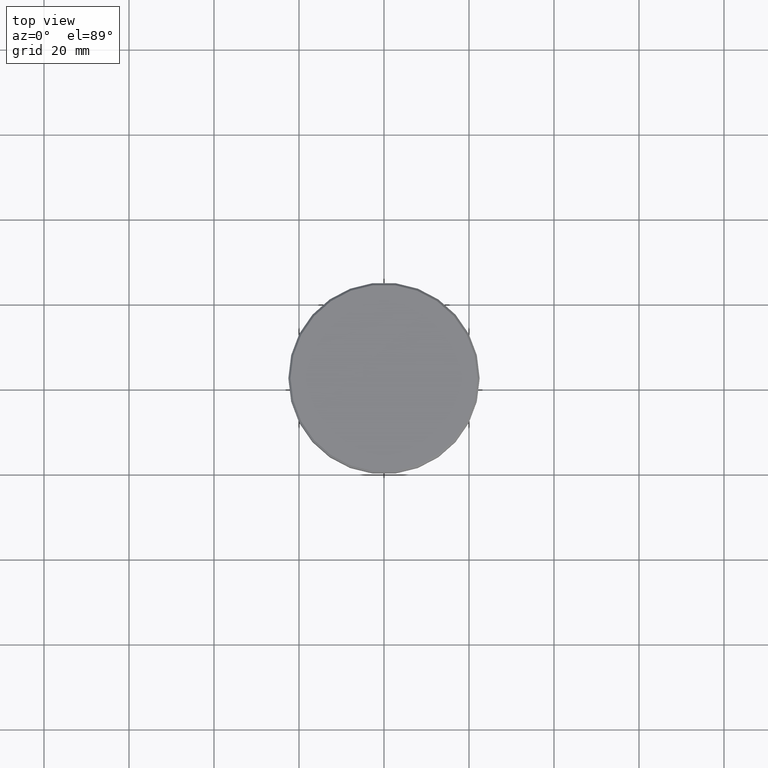
[diagram: clean part render]
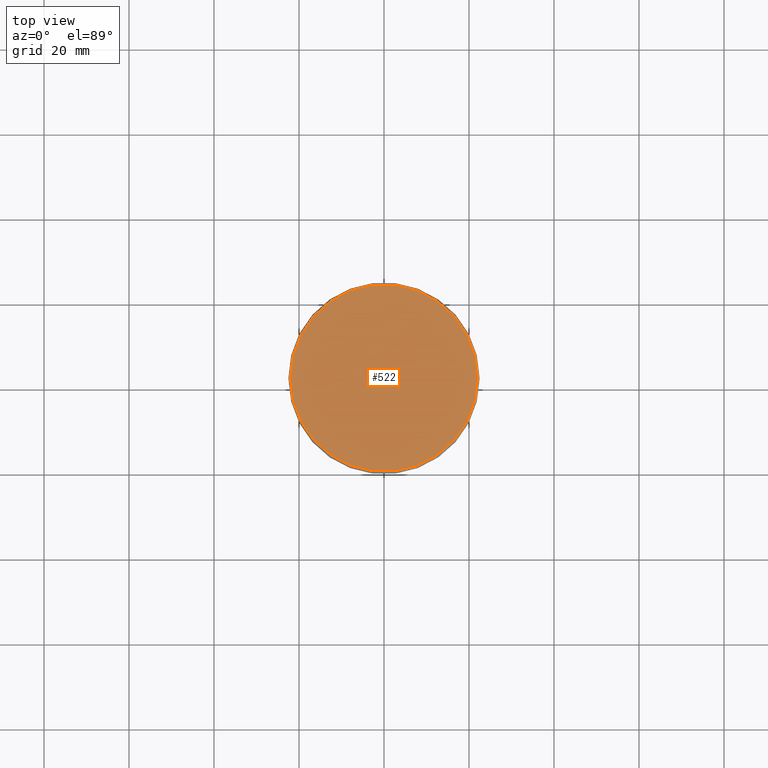
[diagram: same view with one face highlighted and labeled with its STEP entity id]
A machine part, top view. The second image highlights one B-rep face of the part: STEP entity #522.
In plain terms, the highlighted planar face has unit normal (0, -0, 1).
Its self-contained STEP definition (entity closure, byte-faithful):
#13 = CARTESIAN_POINT ( 'NONE',  ( 0.000000000000000000, 0.000000000000000000, 0.000000000000000000 ) ) ;
#112 = AXIS2_PLACEMENT_3D ( 'NONE', #13, #402, #933 ) ;
#117 = ORIENTED_EDGE ( 'NONE', *, *, #231, .T. ) ;
#133 = CARTESIAN_POINT ( 'NONE',  ( 0.000000000000000000, 0.000000000000000000, 0.000000000000000000 ) ) ;
#171 = CARTESIAN_POINT ( 'NONE',  ( 22.00000000000000711, 2.724839128102860991E-15, 0.000000000000000000 ) ) ;
#188 = AXIS2_PLACEMENT_3D ( 'NONE', #874, #786, #1146 ) ;
#231 = EDGE_CURVE ( 'NONE', #606, #1059, #636, .T. ) ;
#240 = EDGE_LOOP ( 'NONE', ( #291, #117 ) ) ;
#291 = ORIENTED_EDGE ( 'NONE', *, *, #855, .T. ) ;
#402 = DIRECTION ( 'NONE',  ( -0.000000000000000000, -0.000000000000000000, 1.000000000000000000 ) ) ;
#416 = DIRECTION ( 'NONE',  ( -0.000000000000000000, -0.000000000000000000, 1.000000000000000000 ) ) ;
#509 = PLANE ( 'NONE',  #188 ) ;
#522 = ADVANCED_FACE ( 'NONE', ( #865 ), #509, .T. ) ;
#606 = VERTEX_POINT ( 'NONE', #171 ) ;
#636 = CIRCLE ( 'NONE', #112, 22.00000000000000711 ) ;
#649 = CARTESIAN_POINT ( 'NONE',  ( -22.00000000000000711, 0.000000000000000000, 0.000000000000000000 ) ) ;
#786 = DIRECTION ( 'NONE',  ( 0.000000000000000000, -0.000000000000000000, 1.000000000000000000 ) ) ;
#811 = CIRCLE ( 'NONE', #1071, 22.00000000000000711 ) ;
#855 = EDGE_CURVE ( 'NONE', #1059, #606, #811, .T. ) ;
#865 = FACE_OUTER_BOUND ( 'NONE', #240, .T. ) ;
#874 = CARTESIAN_POINT ( 'NONE',  ( 0.000000000000000000, 0.000000000000000000, 0.000000000000000000 ) ) ;
#933 = DIRECTION ( 'NONE',  ( 1.000000000000000000, 0.000000000000000000, 0.000000000000000000 ) ) ;
#1059 = VERTEX_POINT ( 'NONE', #649 ) ;
#1071 = AXIS2_PLACEMENT_3D ( 'NONE', #133, #416, #1162 ) ;
#1146 = DIRECTION ( 'NONE',  ( 1.000000000000000000, 0.000000000000000000, 0.000000000000000000 ) ) ;
#1162 = DIRECTION ( 'NONE',  ( 1.000000000000000000, 0.000000000000000000, 0.000000000000000000 ) ) ;